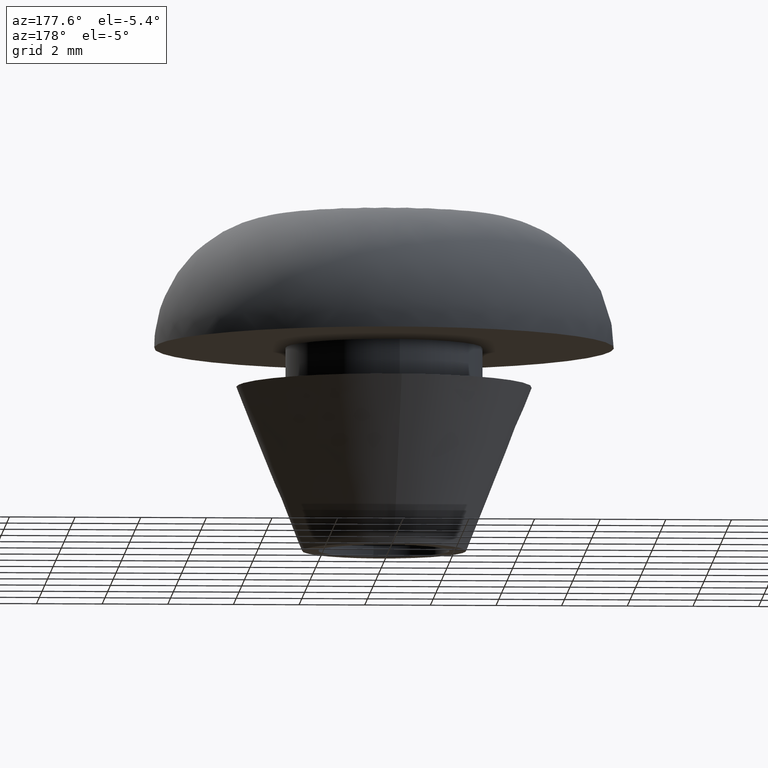
[diagram: clean part render]
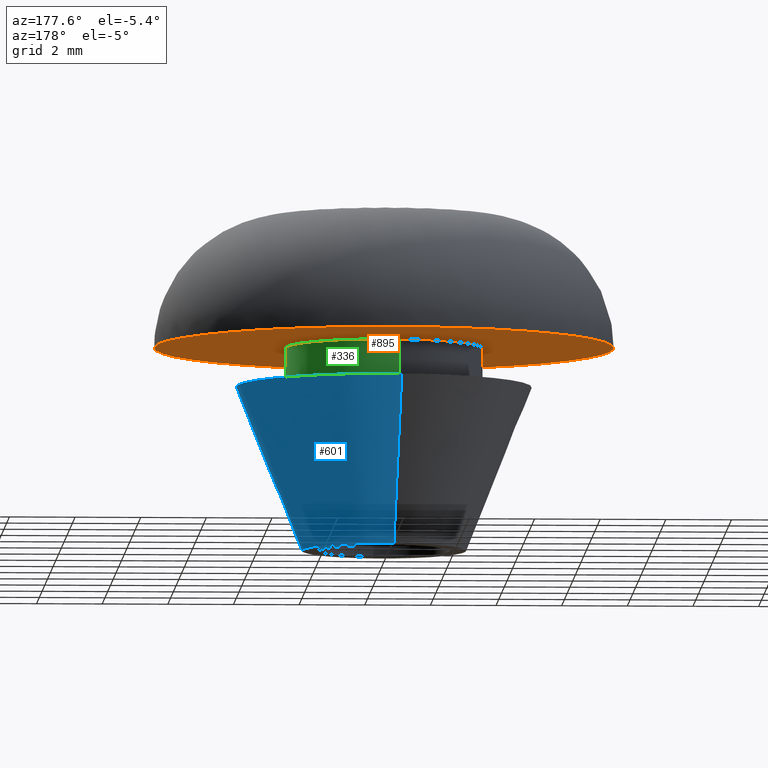
[diagram: same view with three faces highlighted in distinct colors, each labeled with its STEP entity id]
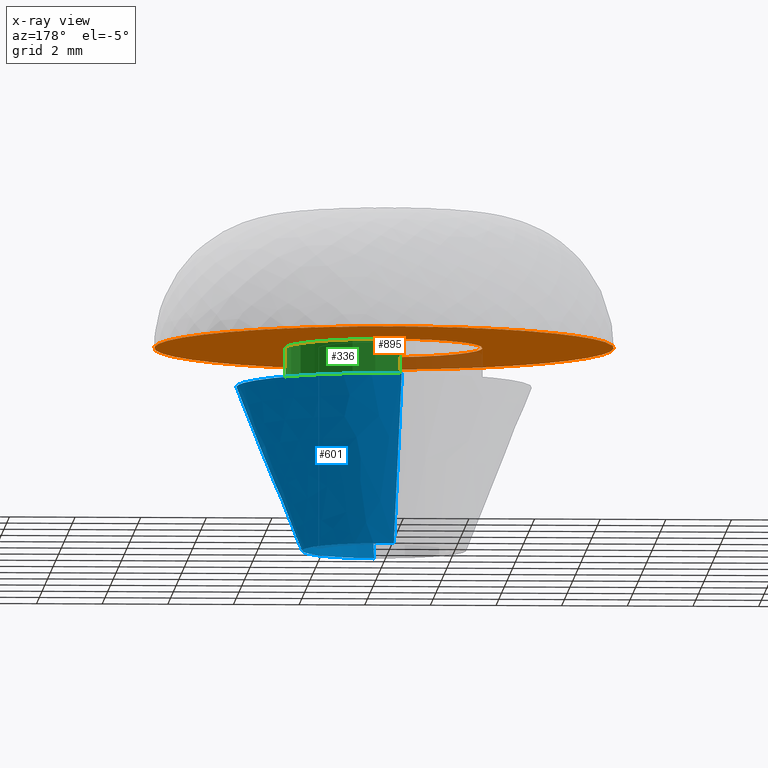
[diagram: x-ray of the same camera — body ghosted, the three highlighted faces saturated]
A machine part, auxiliary view with three faces highlighted in distinct colors.
The next image is the same camera in x-ray (body ghosted, the three faces saturated) — at least one of them is partly hidden behind the body in this view.
Their STEP definitions:

[orange] entity #895 — the highlighted face is a freeform B-spline surface patch.
#256=CARTESIAN_POINT('',(-0.354102375368443,2.979028618150271,6.199999999999999));
#257=VERTEX_POINT('',#256);
#258=CARTESIAN_POINT('',(3.0,0.0,6.200000000000000));
#259=VERTEX_POINT('',#258);
#260=CARTESIAN_POINT('',(-0.354102375368443,2.979028618150271,6.199999999999999));
#261=CARTESIAN_POINT('',(-0.177672026879968,3.000000000000001,6.199999999999999));
#262=CARTESIAN_POINT('',(0.0,3.0,6.200000000000000));
#263=CARTESIAN_POINT('',(3.0,3.0,6.200000000000000));
#264=CARTESIAN_POINT('',(3.0,0.0,6.200000000000000));
#272=(BOUNDED_CURVE()B_SPLINE_CURVE(2,(#260,#261,#262,#263,#264),.UNSPECIFIED.,.F.,.U.)B_SPLINE_CURVE_WITH_KNOTS((3,2,3),(0.229562510799462,0.250000000000000,0.500000000000000),.UNSPECIFIED.)CURVE()GEOMETRIC_REPRESENTATION_ITEM()RATIONAL_B_SPLINE_CURVE((0.956026827265707,0.976055992014357,1.0,0.707106781186548,1.0))REPRESENTATION_ITEM(''));
#273=EDGE_CURVE('',#257,#259,#272,.T.);
#275=CARTESIAN_POINT('',(0.183141187636564,-2.994404666268633,6.199999999999935));
#276=VERTEX_POINT('',#275);
#277=CARTESIAN_POINT('',(3.0,0.0,6.200000000000000));
#278=CARTESIAN_POINT('',(3.000000000000000,-2.822122384550928,6.200000000000001));
#279=CARTESIAN_POINT('',(0.183141187636564,-2.994404666268632,6.199999999999935));
#287=(BOUNDED_CURVE()B_SPLINE_CURVE(2,(#277,#278,#279),.UNSPECIFIED.,.F.,.U.)B_SPLINE_CURVE_WITH_KNOTS((3,3),(0.500000000000000,0.739333217568020),.UNSPECIFIED.)CURVE()GEOMETRIC_REPRESENTATION_ITEM()RATIONAL_B_SPLINE_CURVE((1.0,0.719603694150089,0.976072588886144))REPRESENTATION_ITEM(''));
#288=EDGE_CURVE('',#259,#276,#287,.T.);
#355=CARTESIAN_POINT('',(-3.0,0.0,6.200000000000000));
#356=VERTEX_POINT('',#355);
#357=CARTESIAN_POINT('',(-3.0,0.0,6.200000000000000));
#358=CARTESIAN_POINT('',(-3.000000000000000,2.664524169812923,6.200000000000002));
#359=CARTESIAN_POINT('',(-0.354102375368443,2.979028618150271,6.199999999999999));
#367=(BOUNDED_CURVE()B_SPLINE_CURVE(2,(#357,#358,#359),.UNSPECIFIED.,.F.,.U.)B_SPLINE_CURVE_WITH_KNOTS((3,3),(0.0,0.229562510799462),.UNSPECIFIED.)CURVE()GEOMETRIC_REPRESENTATION_ITEM()RATIONAL_B_SPLINE_CURVE((1.0,0.731050789172191,0.956026827265707))REPRESENTATION_ITEM(''));
#368=EDGE_CURVE('',#356,#257,#367,.T.);
#402=CARTESIAN_POINT('',(0.183141187636564,-2.994404666268632,6.199999999999935));
#403=CARTESIAN_POINT('',(0.091656068200012,-3.000000000000000,6.199999999999999));
#404=CARTESIAN_POINT('',(0.0,-3.0,6.200000000000000));
#405=CARTESIAN_POINT('',(-3.0,-3.0,6.200000000000000));
#406=CARTESIAN_POINT('',(-3.0,0.0,6.200000000000000));
#414=(BOUNDED_CURVE()B_SPLINE_CURVE(2,(#402,#403,#404,#405,#406),.UNSPECIFIED.,.F.,.U.)B_SPLINE_CURVE_WITH_KNOTS((3,2,3),(0.739333217568020,0.750000000000000,1.0),.UNSPECIFIED.)CURVE()GEOMETRIC_REPRESENTATION_ITEM()RATIONAL_B_SPLINE_CURVE((0.976072588886144,0.987503087036458,1.0,0.707106781186548,1.0))REPRESENTATION_ITEM(''));
#415=EDGE_CURVE('',#276,#356,#414,.T.);
#664=CARTESIAN_POINT('',(-7.0,0.0,6.199999999999989));
#665=VERTEX_POINT('',#664);
#681=CARTESIAN_POINT('',(0.808249330410697,-6.953181503447942,6.199999997219420));
#682=VERTEX_POINT('',#681);
#683=CARTESIAN_POINT('',(0.808249330410697,-6.953181503447942,6.199999997219419));
#684=CARTESIAN_POINT('',(0.405480526026914,-7.000000000000001,6.200000000000001));
#685=CARTESIAN_POINT('',(0.0,-7.0,6.200000000000000));
#686=CARTESIAN_POINT('',(-6.999999999999999,-6.999999999999999,6.199999999999999));
#687=CARTESIAN_POINT('',(-7.0,0.0,6.200000000000000));
#695=(BOUNDED_CURVE()B_SPLINE_CURVE(2,(#683,#684,#685,#686,#687),.UNSPECIFIED.,.F.,.U.)B_SPLINE_CURVE_WITH_KNOTS((3,2,3),(0.730000013374359,0.750000000000000,1.0),.UNSPECIFIED.)CURVE()GEOMETRIC_REPRESENTATION_ITEM()RATIONAL_B_SPLINE_CURVE((0.956886144514642,0.976568558163960,1.0,0.707106781186547,1.0))REPRESENTATION_ITEM(''));
#696=EDGE_CURVE('',#682,#665,#695,.T.);
#789=CARTESIAN_POINT('',(7.0,0.0,6.200000000000000));
#790=VERTEX_POINT('',#789);
#791=CARTESIAN_POINT('',(7.0,0.0,6.200000000000000));
#792=CARTESIAN_POINT('',(6.999999999999999,-6.233442401958143,6.199999999999999));
#793=CARTESIAN_POINT('',(0.808249330410697,-6.953181503447942,6.199999997219420));
#801=(BOUNDED_CURVE()B_SPLINE_CURVE(2,(#791,#792,#793),.UNSPECIFIED.,.F.,.U.)B_SPLINE_CURVE_WITH_KNOTS((3,3),(0.500000000000000,0.730000013374358),.UNSPECIFIED.)CURVE()GEOMETRIC_REPRESENTATION_ITEM()RATIONAL_B_SPLINE_CURVE((1.0,0.730538223022588,0.956886144514641))REPRESENTATION_ITEM(''));
#802=EDGE_CURVE('',#790,#682,#801,.T.);
#804=CARTESIAN_POINT('',(-7.0,0.0,6.200000000000000));
#805=CARTESIAN_POINT('',(-6.999999999999999,6.999999999999999,6.199999999999999));
#806=CARTESIAN_POINT('',(0.0,7.0,6.200000000000000));
#807=CARTESIAN_POINT('',(6.999999999999999,6.999999999999999,6.199999999999999));
#808=CARTESIAN_POINT('',(7.0,0.0,6.200000000000000));
#816=(BOUNDED_CURVE()B_SPLINE_CURVE(2,(#804,#805,#806,#807,#808),.UNSPECIFIED.,.F.,.U.)B_SPLINE_CURVE_WITH_KNOTS((3,2,3),(0.0,0.250000000000000,0.500000000000000),.UNSPECIFIED.)CURVE()GEOMETRIC_REPRESENTATION_ITEM()RATIONAL_B_SPLINE_CURVE((1.0,0.707106781186547,1.0,0.707106781186547,1.0))REPRESENTATION_ITEM(''));
#817=EDGE_CURVE('',#665,#790,#816,.T.);
#879=CARTESIAN_POINT('',(7.699299972865284,-7.699260438105377,6.200000000000000));
#880=CARTESIAN_POINT('',(-7.699300348374545,-7.699260438105377,6.200000000000000));
#881=CARTESIAN_POINT('',(7.699299972865284,7.699298467473819,6.200000000000000));
#882=CARTESIAN_POINT('',(-7.699300348374545,7.699298467473819,6.200000000000000));
#883=B_SPLINE_SURFACE_WITH_KNOTS('',1,1,((#879,#881),(#880,#882)),.UNSPECIFIED.,.F.,.F.,.U.,(2,2),(2,2),(0.0,15.398600321239829),(0.0,15.398558905579200),.UNSPECIFIED.);
#884=ORIENTED_EDGE('',*,*,#817,.T.);
#885=ORIENTED_EDGE('',*,*,#802,.T.);
#886=ORIENTED_EDGE('',*,*,#696,.T.);
#887=EDGE_LOOP('',(#884,#885,#886));
#888=FACE_OUTER_BOUND('',#887,.T.);
#889=ORIENTED_EDGE('',*,*,#288,.F.);
#890=ORIENTED_EDGE('',*,*,#273,.F.);
#891=ORIENTED_EDGE('',*,*,#368,.F.);
#892=ORIENTED_EDGE('',*,*,#415,.F.);
#893=EDGE_LOOP('',(#889,#890,#891,#892));
#894=FACE_BOUND('',#893,.T.);
#895=ADVANCED_FACE('',(#888,#894),#883,.T.);

[blue] entity #601 — the highlighted face is a freeform B-spline surface patch.
#440=CARTESIAN_POINT('',(-0.196147739338507,2.492293334332739,3.503475E-012));
#441=VERTEX_POINT('',#440);
#455=CARTESIAN_POINT('',(0.196147739338507,-2.492293334332739,3.503475E-012));
#456=VERTEX_POINT('',#455);
#472=CARTESIAN_POINT('',(0.353065930785465,-4.486128001799032,5.000000000001885));
#473=VERTEX_POINT('',#472);
#474=CARTESIAN_POINT('',(0.196147739338507,-2.492293334332739,3.503475E-012));
#475=CARTESIAN_POINT('',(0.353065930785465,-4.486128001799032,5.000000000001885));
#476=QUASI_UNIFORM_CURVE('',1,(#474,#475),.UNSPECIFIED.,.F.,.U.);
#477=EDGE_CURVE('',#456,#473,#476,.T.);
#496=CARTESIAN_POINT('',(-0.353065930785465,4.486128001799031,5.000000000001885));
#497=VERTEX_POINT('',#496);
#511=CARTESIAN_POINT('',(-0.196147739338507,2.492293334332739,3.503475E-012));
#512=CARTESIAN_POINT('',(-0.353065930785465,4.486128001799031,5.000000000001885));
#513=QUASI_UNIFORM_CURVE('',1,(#511,#512),.UNSPECIFIED.,.F.,.U.);
#514=EDGE_CURVE('',#441,#497,#513,.T.);
#519=CARTESIAN_POINT('',(0.192224784533222,-2.442447467646163,-0.125000000000000));
#520=CARTESIAN_POINT('',(2.634672252179385,-2.250222683112942,-0.125000000000000));
#521=CARTESIAN_POINT('',(2.442447467646163,0.192224784533222,-0.125000000000000));
#522=CARTESIAN_POINT('',(2.250222683112942,2.634672252179385,-0.125000000000000));
#523=CARTESIAN_POINT('',(-0.192224784533222,2.442447467646163,-0.125000000000000));
#524=CARTESIAN_POINT('',(0.357086959431357,-4.537220015152898,5.128125000000001));
#525=CARTESIAN_POINT('',(4.894306974584256,-4.180133055721541,5.128125000000001));
#526=CARTESIAN_POINT('',(4.537220015152898,0.357086959431357,5.128125000000001));
#527=CARTESIAN_POINT('',(4.180133055721541,4.894306974584256,5.128125000000001));
#528=CARTESIAN_POINT('',(-0.357086959431357,4.537220015152898,5.128125000000001));
#536=(BOUNDED_SURFACE()B_SPLINE_SURFACE(2,1,((#519,#524),(#520,#525),(#521,#526),(#522,#527),(#523,#528)),.UNSPECIFIED.,.F.,.F.,.U.)B_SPLINE_SURFACE_WITH_KNOTS((3,2,3),(2,2),(0.0,7.540757903002195,15.081515806004390),(0.0,5.657788775495690),.UNSPECIFIED.)GEOMETRIC_REPRESENTATION_ITEM()RATIONAL_B_SPLINE_SURFACE(((1.0,1.0),(0.707106781186548,0.707106781186548),(1.0,1.0),(0.707106781186548,0.707106781186548),(1.0,1.0)))REPRESENTATION_ITEM('')SURFACE());
#537=CARTESIAN_POINT('',(2.500000000000000,0.0,0.0));
#538=VERTEX_POINT('',#537);
#539=CARTESIAN_POINT('',(-0.196147739338507,2.492293334332739,3.503475E-012));
#540=CARTESIAN_POINT('',(-0.098225267538045,2.500000000000000,0.0));
#541=CARTESIAN_POINT('',(0.0,2.500000000000000,0.0));
#542=CARTESIAN_POINT('',(2.500000000000000,2.500000000000000,0.0));
#543=CARTESIAN_POINT('',(2.500000000000000,0.0,0.0));
#551=(BOUNDED_CURVE()B_SPLINE_CURVE(2,(#539,#540,#541,#542,#543),.UNSPECIFIED.,.F.,.U.)B_SPLINE_CURVE_WITH_KNOTS((3,2,3),(0.236331300630183,0.250000000000000,0.500000000000000),.UNSPECIFIED.)CURVE()GEOMETRIC_REPRESENTATION_ITEM()RATIONAL_B_SPLINE_CURVE((0.969723356166423,0.983986122578324,1.0,0.707106781186548,1.0))REPRESENTATION_ITEM(''));
#552=EDGE_CURVE('',#441,#538,#551,.T.);
#553=ORIENTED_EDGE('',*,*,#552,.F.);
#554=ORIENTED_EDGE('',*,*,#514,.T.);
#555=CARTESIAN_POINT('',(4.500000000000000,0.0,5.0));
#556=VERTEX_POINT('',#555);
#557=CARTESIAN_POINT('',(-0.353065930785465,4.486128001799031,5.000000000001886));
#558=CARTESIAN_POINT('',(-0.176805481544663,4.500000000000001,5.0));
#559=CARTESIAN_POINT('',(0.0,4.500000000000000,5.0));
#560=CARTESIAN_POINT('',(4.500000000000000,4.500000000000000,4.999999999999999));
#561=CARTESIAN_POINT('',(4.500000000000000,0.0,5.0));
#569=(BOUNDED_CURVE()B_SPLINE_CURVE(2,(#557,#558,#559,#560,#561),.UNSPECIFIED.,.F.,.U.)B_SPLINE_CURVE_WITH_KNOTS((3,2,3),(0.236331300631995,0.250000000000000,0.500000000000000),.UNSPECIFIED.)CURVE()GEOMETRIC_REPRESENTATION_ITEM()RATIONAL_B_SPLINE_CURVE((0.969723356170204,0.983986122580446,1.0,0.707106781186547,1.0))REPRESENTATION_ITEM(''));
#570=EDGE_CURVE('',#497,#556,#569,.T.);
#571=ORIENTED_EDGE('',*,*,#570,.T.);
#572=CARTESIAN_POINT('',(4.500000000000000,0.0,5.0));
#573=CARTESIAN_POINT('',(4.500000000000001,-4.159757212443157,4.999999999999999));
#574=CARTESIAN_POINT('',(0.353065930785465,-4.486128001799032,5.000000000001885));
#582=(BOUNDED_CURVE()B_SPLINE_CURVE(2,(#572,#573,#574),.UNSPECIFIED.,.F.,.U.)B_SPLINE_CURVE_WITH_KNOTS((3,3),(0.500000000000000,0.736331300631996),.UNSPECIFIED.)CURVE()GEOMETRIC_REPRESENTATION_ITEM()RATIONAL_B_SPLINE_CURVE((1.0,0.723120658606100,0.969723356170206))REPRESENTATION_ITEM(''));
#583=EDGE_CURVE('',#556,#473,#582,.T.);
#584=ORIENTED_EDGE('',*,*,#583,.T.);
#585=ORIENTED_EDGE('',*,*,#477,.F.);
#586=CARTESIAN_POINT('',(2.500000000000000,0.0,0.0));
#587=CARTESIAN_POINT('',(2.500000000000000,-2.310976229110586,0.0));
#588=CARTESIAN_POINT('',(0.196147739338507,-2.492293334332738,3.503475E-012));
#596=(BOUNDED_CURVE()B_SPLINE_CURVE(2,(#586,#587,#588),.UNSPECIFIED.,.F.,.U.)B_SPLINE_CURVE_WITH_KNOTS((3,3),(0.500000000000000,0.736331300630184),.UNSPECIFIED.)CURVE()GEOMETRIC_REPRESENTATION_ITEM()RATIONAL_B_SPLINE_CURVE((1.0,0.723120658608223,0.969723356166425))REPRESENTATION_ITEM(''));
#597=EDGE_CURVE('',#538,#456,#596,.T.);
#598=ORIENTED_EDGE('',*,*,#597,.F.);
#599=EDGE_LOOP('',(#553,#554,#571,#584,#585,#598));
#600=FACE_OUTER_BOUND('',#599,.T.);
#601=ADVANCED_FACE('',(#600),#536,.T.);

[green] entity #336 — the highlighted face is a freeform B-spline surface patch.
#230=CARTESIAN_POINT('',(-0.398312307860684,2.973773597521193,6.230000000000001));
#231=CARTESIAN_POINT('',(-0.376145177737272,2.976408496954872,6.230000000000002));
#232=CARTESIAN_POINT('',(-0.268844185913933,2.989162846345817,6.230000000000001));
#233=CARTESIAN_POINT('',(-0.183145618604571,2.994404395265600,6.230000000000001));
#234=CARTESIAN_POINT('',(2.811258776661029,3.177550013870171,6.230000000000003));
#235=CARTESIAN_POINT('',(2.994404395265600,0.183145618604571,6.230000000000001));
#236=CARTESIAN_POINT('',(3.177550013870171,-2.811258776661029,6.230000000000003));
#237=CARTESIAN_POINT('',(0.161610626708117,-2.995721531794908,6.230000000000004));
#238=CARTESIAN_POINT('',(0.140203555703779,-2.997030844347278,6.230000000000001));
#239=CARTESIAN_POINT('',(-0.398312307860684,2.973773597521193,4.969250000000000));
#240=CARTESIAN_POINT('',(-0.376145177737272,2.976408496954872,4.969250000000000));
#241=CARTESIAN_POINT('',(-0.268844185913933,2.989162846345817,4.969249999999999));
#242=CARTESIAN_POINT('',(-0.183145618604571,2.994404395265600,4.969249999999999));
#243=CARTESIAN_POINT('',(2.811258776661029,3.177550013870171,4.969249999999999));
#244=CARTESIAN_POINT('',(2.994404395265600,0.183145618604571,4.969249999999999));
#245=CARTESIAN_POINT('',(3.177550013870171,-2.811258776661029,4.969249999999999));
#246=CARTESIAN_POINT('',(0.161610626708117,-2.995721531794908,4.969250000000001));
#247=CARTESIAN_POINT('',(0.140203555703779,-2.997030844347278,4.969249999999998));
#255=(BOUNDED_SURFACE()B_SPLINE_SURFACE(2,1,((#230,#239),(#231,#240),(#232,#241),(#233,#242),(#234,#243),(#235,#244),(#236,#245),(#237,#246),(#238,#247)),.UNSPECIFIED.,.F.,.F.,.U.)B_SPLINE_SURFACE_WITH_KNOTS((3,1,2,2,1,3),(2,2),(0.0,0.050699388622757,0.249521898561843,5.220084647038982,10.190647395516120,10.241352359452330),(0.0,1.0),.UNSPECIFIED.)GEOMETRIC_REPRESENTATION_ITEM()RATIONAL_B_SPLINE_SURFACE(((0.972008818965562,0.972008818965562),(0.974757309880344,0.974757309880344),(0.988284271247462,0.988284271247462),(1.0,1.0),(0.707106781186548,0.707106781186548),(1.0,1.0),(0.707106781186548,0.707106781186548),(1.002987818653259,1.002987818653259),(1.005975637306519,1.005975637306519)))REPRESENTATION_ITEM('')SURFACE());
#256=CARTESIAN_POINT('',(-0.354102375368443,2.979028618150271,6.199999999999999));
#257=VERTEX_POINT('',#256);
#258=CARTESIAN_POINT('',(3.0,0.0,6.200000000000000));
#259=VERTEX_POINT('',#258);
#260=CARTESIAN_POINT('',(-0.354102375368443,2.979028618150271,6.199999999999999));
#261=CARTESIAN_POINT('',(-0.177672026879968,3.000000000000001,6.199999999999999));
#262=CARTESIAN_POINT('',(0.0,3.0,6.200000000000000));
#263=CARTESIAN_POINT('',(3.0,3.0,6.200000000000000));
#264=CARTESIAN_POINT('',(3.0,0.0,6.200000000000000));
#272=(BOUNDED_CURVE()B_SPLINE_CURVE(2,(#260,#261,#262,#263,#264),.UNSPECIFIED.,.F.,.U.)B_SPLINE_CURVE_WITH_KNOTS((3,2,3),(0.229562510799462,0.250000000000000,0.500000000000000),.UNSPECIFIED.)CURVE()GEOMETRIC_REPRESENTATION_ITEM()RATIONAL_B_SPLINE_CURVE((0.956026827265707,0.976055992014357,1.0,0.707106781186548,1.0))REPRESENTATION_ITEM(''));
#273=EDGE_CURVE('',#257,#259,#272,.T.);
#274=ORIENTED_EDGE('',*,*,#273,.T.);
#275=CARTESIAN_POINT('',(0.183141187636564,-2.994404666268633,6.199999999999935));
#276=VERTEX_POINT('',#275);
#277=CARTESIAN_POINT('',(3.0,0.0,6.200000000000000));
#278=CARTESIAN_POINT('',(3.000000000000000,-2.822122384550928,6.200000000000001));
#279=CARTESIAN_POINT('',(0.183141187636564,-2.994404666268632,6.199999999999935));
#287=(BOUNDED_CURVE()B_SPLINE_CURVE(2,(#277,#278,#279),.UNSPECIFIED.,.F.,.U.)B_SPLINE_CURVE_WITH_KNOTS((3,3),(0.500000000000000,0.739333217568020),.UNSPECIFIED.)CURVE()GEOMETRIC_REPRESENTATION_ITEM()RATIONAL_B_SPLINE_CURVE((1.0,0.719603694150089,0.976072588886144))REPRESENTATION_ITEM(''));
#288=EDGE_CURVE('',#259,#276,#287,.T.);
#289=ORIENTED_EDGE('',*,*,#288,.T.);
#290=CARTESIAN_POINT('',(0.183141240990780,-2.994404663005506,5.0));
#291=VERTEX_POINT('',#290);
#292=CARTESIAN_POINT('',(0.183141187636564,-2.994404666268633,6.199999999999935));
#293=CARTESIAN_POINT('',(0.183141240990780,-2.994404663005506,5.0));
#294=QUASI_UNIFORM_CURVE('',1,(#292,#293),.UNSPECIFIED.,.F.,.U.);
#295=EDGE_CURVE('',#276,#291,#294,.T.);
#296=ORIENTED_EDGE('',*,*,#295,.T.);
#297=CARTESIAN_POINT('',(3.0,0.0,5.0));
#298=VERTEX_POINT('',#297);
#299=CARTESIAN_POINT('',(3.0,0.0,5.0));
#300=CARTESIAN_POINT('',(3.000000000000000,-2.822122334172474,5.0));
#301=CARTESIAN_POINT('',(0.183141240990780,-2.994404663005506,5.0));
#309=(BOUNDED_CURVE()B_SPLINE_CURVE(2,(#299,#300,#301),.UNSPECIFIED.,.F.,.U.)B_SPLINE_CURVE_WITH_KNOTS((3,3),(0.500000000000000,0.739333214493585),.UNSPECIFIED.)CURVE()GEOMETRIC_REPRESENTATION_ITEM()RATIONAL_B_SPLINE_CURVE((1.0,0.719603697752014,0.976072582297030))REPRESENTATION_ITEM(''));
#310=EDGE_CURVE('',#298,#291,#309,.T.);
#311=ORIENTED_EDGE('',*,*,#310,.F.);
#312=CARTESIAN_POINT('',(-0.354102379321857,2.979028617680349,5.0));
#313=VERTEX_POINT('',#312);
#314=CARTESIAN_POINT('',(-0.354102379321857,2.979028617680349,5.0));
#315=CARTESIAN_POINT('',(-0.177672030875177,3.0,4.999999999999999));
#316=CARTESIAN_POINT('',(0.0,3.0,5.0));
#317=CARTESIAN_POINT('',(3.0,3.0,5.000000000000001));
#318=CARTESIAN_POINT('',(3.0,0.0,5.0));
#326=(BOUNDED_CURVE()B_SPLINE_CURVE(2,(#314,#315,#316,#317,#318),.UNSPECIFIED.,.F.,.U.)B_SPLINE_CURVE_WITH_KNOTS((3,2,3),(0.229562510350900,0.250000000000000,0.500000000000000),.UNSPECIFIED.)CURVE()GEOMETRIC_REPRESENTATION_ITEM()RATIONAL_B_SPLINE_CURVE((0.956026826386506,0.976055991488833,1.0,0.707106781186548,1.0))REPRESENTATION_ITEM(''));
#327=EDGE_CURVE('',#313,#298,#326,.T.);
#328=ORIENTED_EDGE('',*,*,#327,.F.);
#329=CARTESIAN_POINT('',(-0.354102375368443,2.979028618150271,6.199999999999999));
#330=CARTESIAN_POINT('',(-0.354102379321857,2.979028617680349,5.0));
#331=QUASI_UNIFORM_CURVE('',1,(#329,#330),.UNSPECIFIED.,.F.,.U.);
#332=EDGE_CURVE('',#257,#313,#331,.T.);
#333=ORIENTED_EDGE('',*,*,#332,.F.);
#334=EDGE_LOOP('',(#274,#289,#296,#311,#328,#333));
#335=FACE_OUTER_BOUND('',#334,.T.);
#336=ADVANCED_FACE('',(#335),#255,.T.);